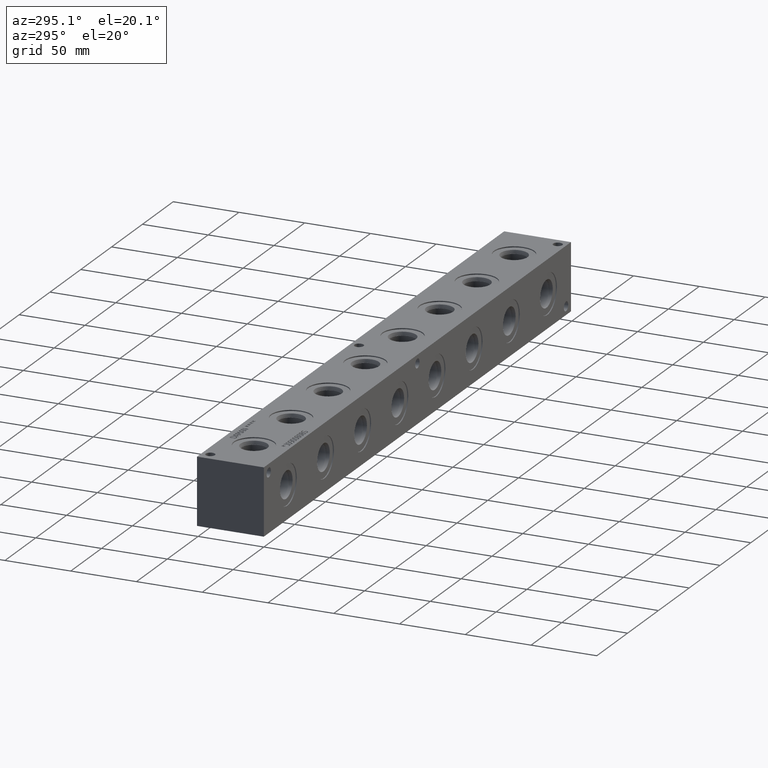
[diagram: clean part render]
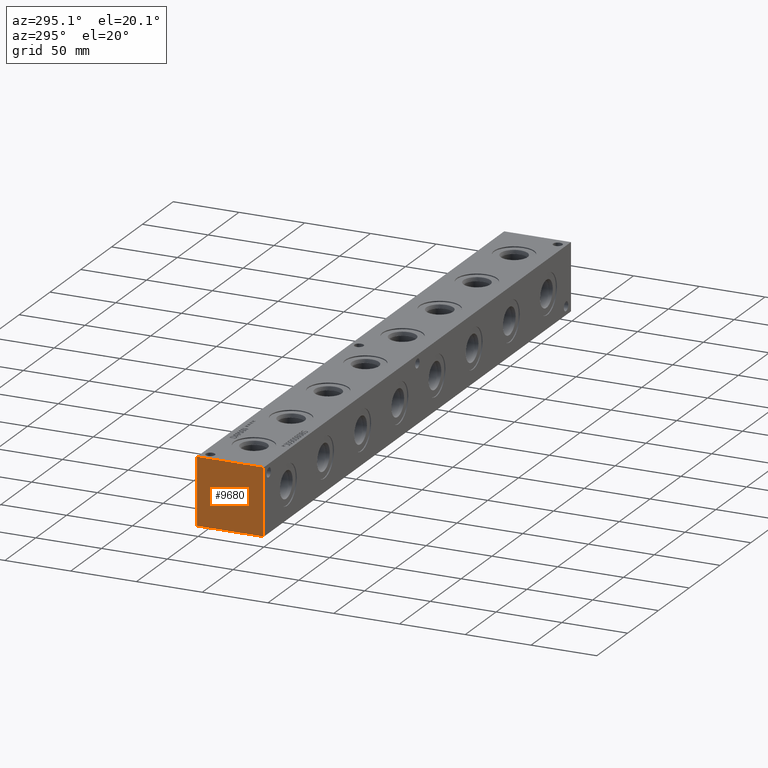
[diagram: same view with one face highlighted and labeled with its STEP entity id]
A machine part, auxiliary view. The second image highlights one B-rep face of the part: STEP entity #9680.
In plain terms, the highlighted planar face has unit normal (-1, 0, 0).
Its self-contained STEP definition (entity closure, byte-faithful):
#824=PLANE('',#10419);
#1341=FACE_OUTER_BOUND('',#1932,.T.);
#1932=EDGE_LOOP('',(#8672,#8673,#8674,#8675));
#2189=LINE('',#15228,#2917);
#2675=LINE('',#17394,#3403);
#2676=LINE('',#17395,#3404);
#2677=LINE('',#17396,#3405);
#2917=VECTOR('',#10753,10.);
#3403=VECTOR('',#12587,10.);
#3404=VECTOR('',#12588,10.);
#3405=VECTOR('',#12589,10.);
#4031=VERTEX_POINT('',#15221);
#4034=VERTEX_POINT('',#15226);
#4615=VERTEX_POINT('',#17392);
#4616=VERTEX_POINT('',#17393);
#5105=EDGE_CURVE('',#4034,#4031,#2189,.T.);
#5979=EDGE_CURVE('',#4615,#4616,#2675,.T.);
#5980=EDGE_CURVE('',#4616,#4031,#2676,.T.);
#5981=EDGE_CURVE('',#4615,#4034,#2677,.T.);
#8672=ORIENTED_EDGE('',*,*,#5979,.T.);
#8673=ORIENTED_EDGE('',*,*,#5980,.T.);
#8674=ORIENTED_EDGE('',*,*,#5105,.F.);
#8675=ORIENTED_EDGE('',*,*,#5981,.F.);
#9680=ADVANCED_FACE('',(#1341),#824,.T.);
#10419=AXIS2_PLACEMENT_3D('',#17391,#12585,#12586);
#10753=DIRECTION('',(0.,-1.,0.));
#12585=DIRECTION('center_axis',(-1.,0.,0.));
#12586=DIRECTION('ref_axis',(0.,-1.,0.));
#12587=DIRECTION('',(0.,-1.,0.));
#12588=DIRECTION('',(0.,0.,1.));
#12589=DIRECTION('',(0.,0.,1.));
#15221=CARTESIAN_POINT('',(0.,0.,50.8));
#15226=CARTESIAN_POINT('',(0.,50.8,50.8));
#15228=CARTESIAN_POINT('',(0.,50.8,50.8));
#17391=CARTESIAN_POINT('Origin',(0.,50.8,0.));
#17392=CARTESIAN_POINT('',(0.,50.8,0.));
#17393=CARTESIAN_POINT('',(0.,0.,0.));
#17394=CARTESIAN_POINT('',(0.,50.8,0.));
#17395=CARTESIAN_POINT('',(0.,0.,0.));
#17396=CARTESIAN_POINT('',(0.,50.8,0.));